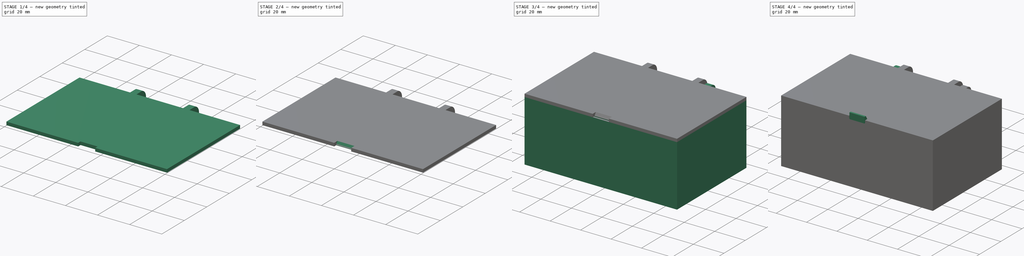
[diagram: build sequence overview — one tinted view per stage of 4, left to right]
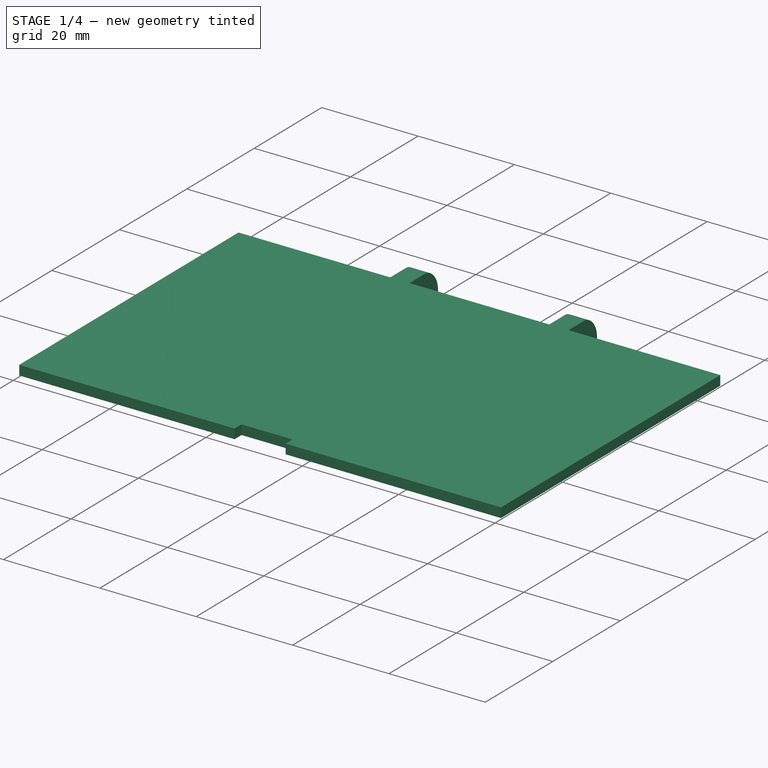
[diagram: stage 1 of 4 — iso view after this stage's code; geometry added in this stage tinted green]
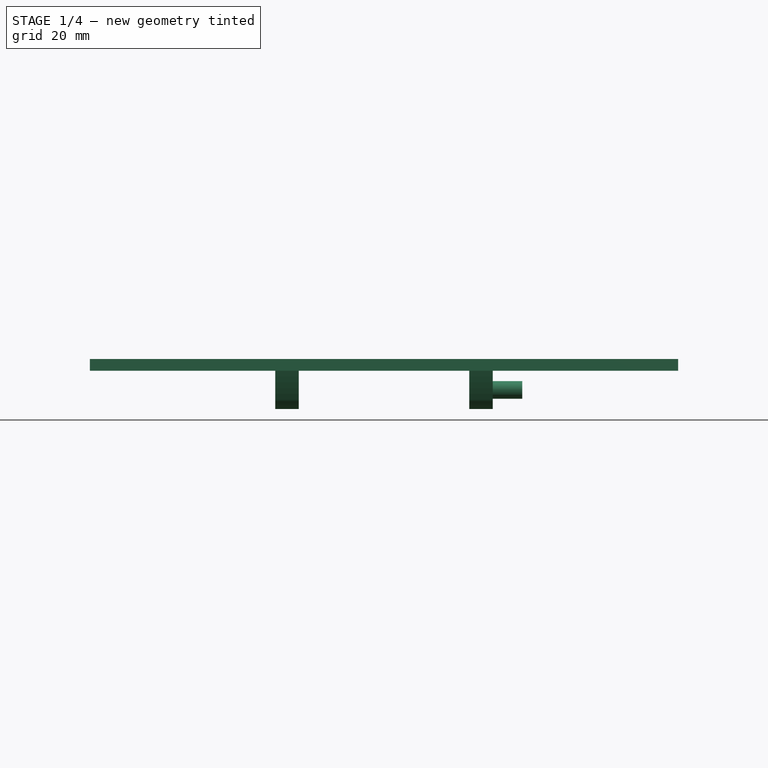
[diagram: stage 1 of 4 — front view after this stage's code; geometry added in this stage tinted green]
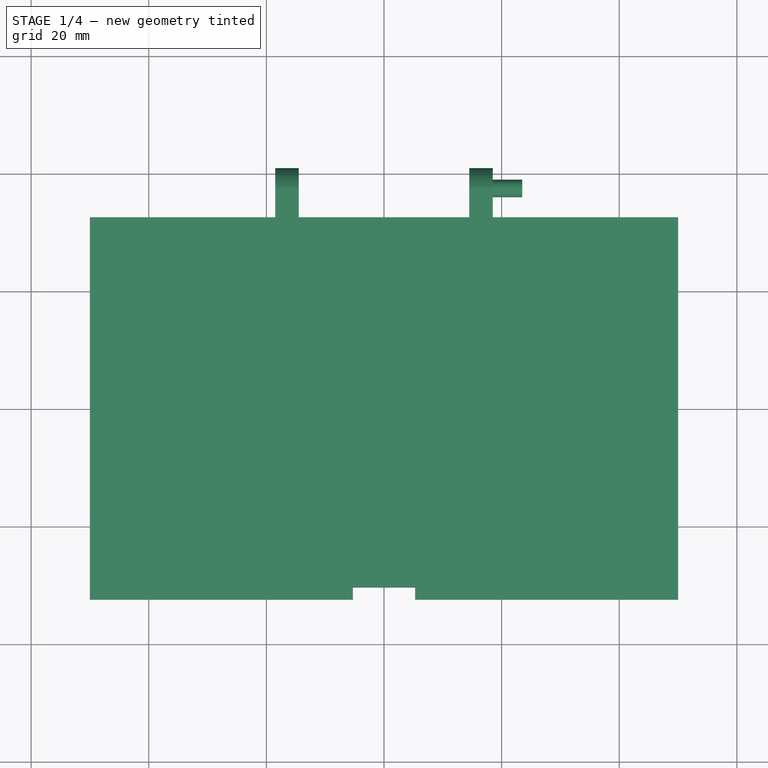
[diagram: stage 1 of 4 — top view after this stage's code; geometry added in this stage tinted green]
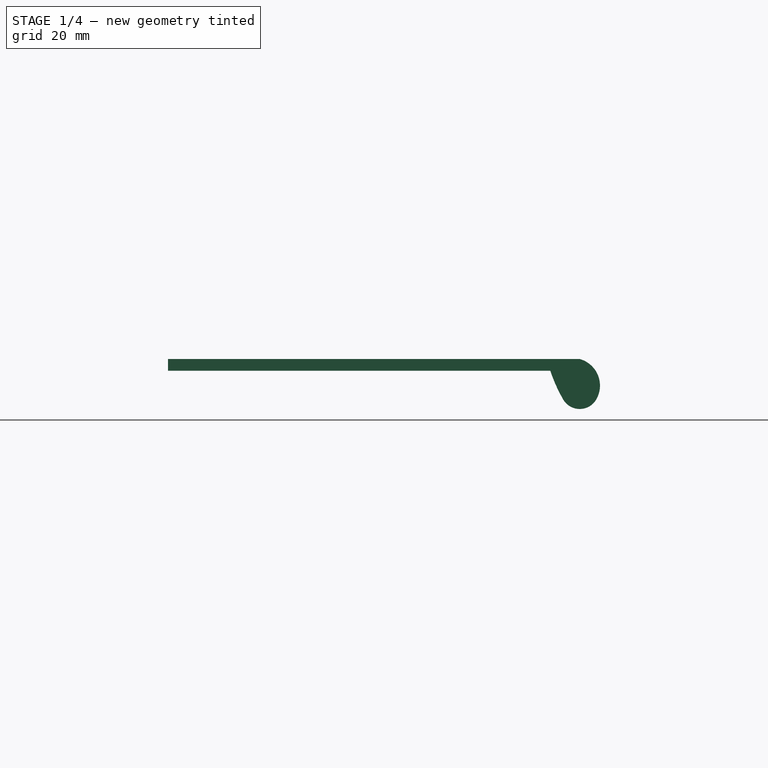
[diagram: stage 1 of 4 — right view after this stage's code; geometry added in this stage tinted green]
FCSTD DOCUMENT  (FreeCAD 0.19R22756 (Git))
Label: screw-box
License: All rights reserved
LicenseURL: http://en.wikipedia.org/wiki/All_rights_reserved
objects: Sketcher::SketchObject×10, PartDesign::Pad×7, PartDesign::Mirrored×4, PartDesign::Pocket×3, PartDesign::Plane×2, PartDesign::Body×2, PartDesign::ShapeBinder×2
note: 40 computed .brp shape members not serialized (recipe doc carries the construction recipe); baked Part::Feature solids carry a one-line shape summary decoded from their .brp

FEATURE [PartDesign::Body] Body  label="Screwbox-100x65"
  Group = -> [Sketch,Pad,Sketch001,Pocket,DatumPlane001,Sketch002,Pad001,Mirrored,Sketch003,Pocket001,Mirrored001,Sketch004,Pad002]
  Origin = -> Origin
  Tip = -> Pad002
FEATURE [PartDesign::ShapeBinder] CopyPad002
  TraceSupport = false
FEATURE [Sketcher::SketchObject] Sketch005
  ExternalGeometry = -> [CopyPad002]
  MapMode = 5
  Placement = pos=(0,0,40) rot=(0,0,1;0rad)
  Support = -> [CopyPad002]
  expr: Constraints[7] = Constraints[6]
  sketch-geometry (8):
    g0: LineSegment StartX=-5.3 StartY=-30.445 StartZ=0 EndX=5.3 EndY=-30.445 EndZ=0
    g1: LineSegment StartX=-5.3 StartY=-30.445 StartZ=0 EndX=-5.3 EndY=-32.5 EndZ=0
    g2: LineSegment StartX=5.3 StartY=-30.445 StartZ=0 EndX=5.3 EndY=-32.5 EndZ=0
    g3: LineSegment StartX=-5.3 StartY=-32.5 StartZ=0 EndX=-50 EndY=-32.5 EndZ=0
    g4: LineSegment StartX=-50 StartY=-32.5 StartZ=0 EndX=-50 EndY=32.5 EndZ=0
    g5: LineSegment StartX=-50 StartY=32.5 StartZ=0 EndX=50 EndY=32.5 EndZ=0
    g6: LineSegment StartX=50 StartY=32.5 StartZ=0 EndX=50 EndY=-32.5 EndZ=0
    g7: LineSegment StartX=50 StartY=-32.5 StartZ=0 EndX=5.3 EndY=-32.5 EndZ=0
  constraints (20):
    c: PointOnObject(g1,g-5)
    c: Horizontal(g0)
    c: Coincident(g1,g0)
    c: Vertical(g1)
    c: Coincident(g2,g0)
    c: Vertical(g2)
    c: Distance(g1,g-3) = 0.3
    c: Distance(g-6,g2) = 0.3
    c: Distance(g-5,g0) = 2.055
    c: PointOnObject(g2,g-6)
    c: Coincident(g3,g1)
    c: Coincident(g3,g-7)
    c: Coincident(g4,g3)
    c: Coincident(g4,g-9)
    c: Coincident(g5,g4)
    c: Coincident(g5,g-13)
    c: Coincident(g6,g5)
    c: Coincident(g6,g-13)
    c: Coincident(g7,g6)
    c: Coincident(g7,g2)
FEATURE [PartDesign::Pad] Pad003
  Direction = (1,1,1)
  Length = 2
  Length2 = 100
  Profile = -> Sketch005
  Type = 0
FEATURE [PartDesign::ShapeBinder] CopyPad002001
  TraceSupport = false
FEATURE [PartDesign::Plane] DatumPlane
  AttachmentOffset = pos=(0,0,1.5) rot=(0,0,1;0rad)
  Length = 87.4707
  MapMode = 5
  Placement = pos=(18.5,0,0) rot=(0.57735,-0.57735,-0.57735;2.0944rad)
  ResizeMode = 0
  Support = -> [CopyPad002001]
  Width = 81.0294
FEATURE [Sketcher::SketchObject] Sketch006
  ExternalGeometry = -> [CopyPad002001,Pad003]
  MapMode = 5
  Placement = pos=(18.5,0,0) rot=(0.57735,-0.57735,-0.57735;2.0944rad)
  Support = -> [DatumPlane]
  sketch-geometry (6):
    g0: LineSegment StartX=-32.5 StartY=40 StartZ=0 EndX=-32.5 EndY=42 EndZ=0
    g1: LineSegment StartX=-32.5 StartY=42 StartZ=0 EndX=-37.5 EndY=42 EndZ=0
    g2: ArcOfCircle CenterX=-36.247 CenterY=37.4734 CenterZ=0 NormalX=0 NormalY=0 NormalZ=1 AngleXU=0 Radius=4.69681 StartAngle=1.84084 EndAngle=3.66519
    g3: Circle [constr] CenterX=-37.5 CenterY=36.75 CenterZ=0 NormalX=0 NormalY=0 NormalZ=1 AngleXU=0 Radius=3.25
    g4: ArcOfCircle CenterX=-57.3676 CenterY=48.2206 CenterZ=0 NormalX=0 NormalY=0 NormalZ=1 AngleXU=0 Radius=26.1911 StartAngle=5.75959 EndAngle=5.96392
    g5: ArcOfCircle CenterX=-37.5 CenterY=36.75 CenterZ=0 NormalX=0 NormalY=0 NormalZ=1 AngleXU=0 Radius=3.25 StartAngle=3.66519 EndAngle=5.75959
  constraints (17):
    c: Coincident(g0,g-8)
    c: Coincident(g0,g-8)
    c: Horizontal(g1)
    c: Coincident(g2,g1)
    c: Coincident(g-5,g2)
    c: Coincident(g1,g0)
    c: Tangent(g2,g-4)
    c: Vertical(g1,g-4)
    c: Coincident(g3,g-6)
    c: Tangent(g3,g-4)
    c: Coincident(g4,g0)
    c: PointOnObject(g4,g3)
    c: Tangent(g4,g3)
    c: Horizontal(g2,g4)
    c: Coincident(g5,g2)
    c: Coincident(g5,g4)
    c: Tangent(g5,g3)
FEATURE [PartDesign::Pad] Pad004
  BaseFeature = -> Pad003
  Direction = (1,1,1)
  Length = 4
  Length2 = 100
  Profile = -> Sketch006
  Type = 0
FEATURE [PartDesign::Mirrored] Mirrored002
  BaseFeature = -> Pad004
  MirrorPlane = -> YZ_Plane001
  Originals = -> [Pad004]
FEATURE [Sketcher::SketchObject] Sketch007
  ExternalGeometry = -> [CopyPad002001]
  MapMode = 5
  Placement = pos=(18.5,0,0) rot=(0.57735,0.57735,0.57735;2.0944rad)
  Support = -> [Mirrored002]
  sketch-geometry (1):
    g0: Circle CenterX=37.5 CenterY=36.75 CenterZ=0 NormalX=0 NormalY=0 NormalZ=1 AngleXU=0 Radius=1.5
  constraints (2):
    c: Coincident(g0,g-3)
    c: Diameter(g0) = 3
FEATURE [PartDesign::Pad] Pad005
  BaseFeature = -> Mirrored002
  Direction = (1,1,1)
  Length = 5
  Length2 = 100
  Profile = -> Sketch007
  Type = 0
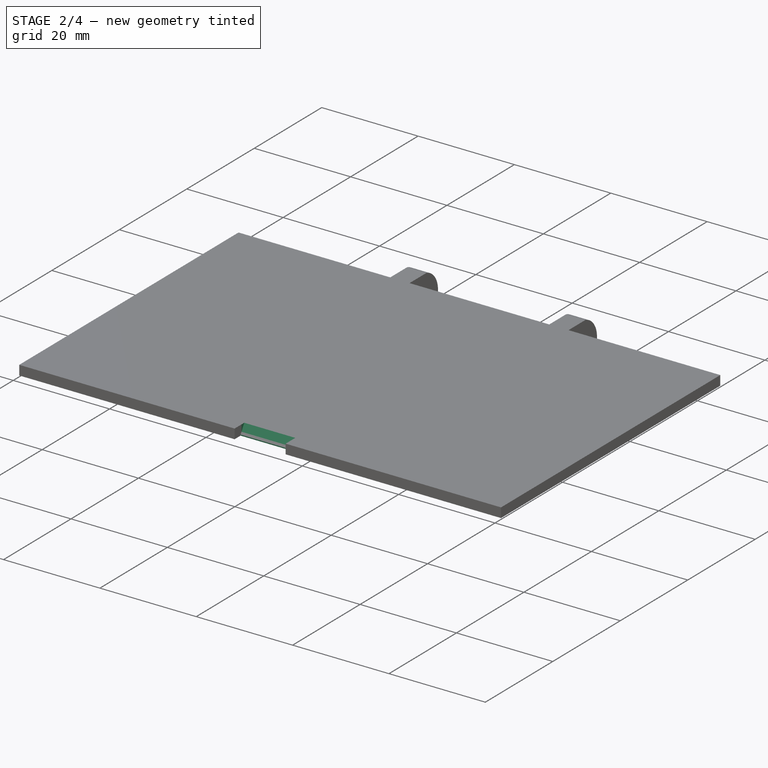
[diagram: stage 2 of 4 — iso view after this stage's code; geometry added in this stage tinted green]
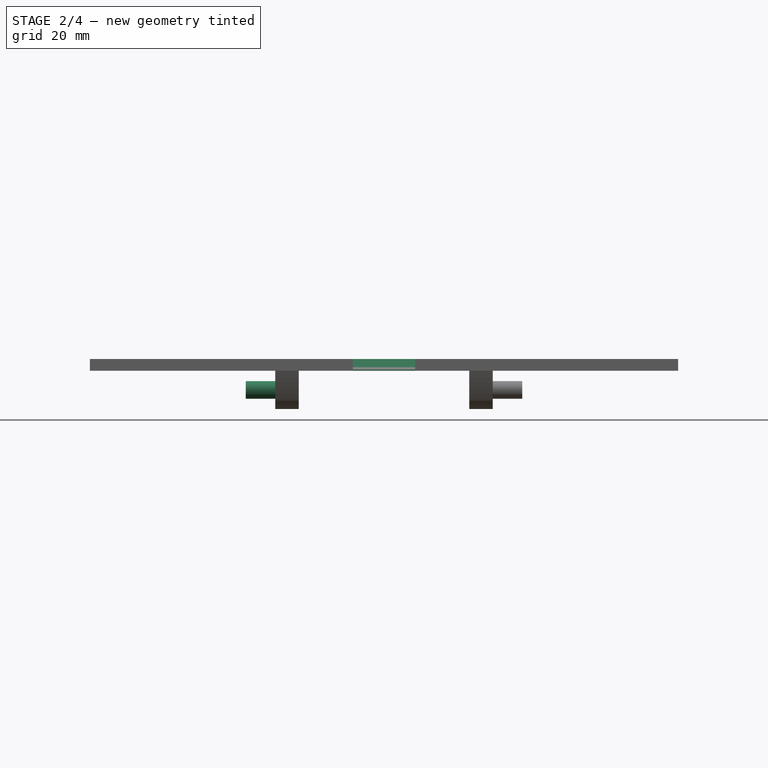
[diagram: stage 2 of 4 — front view after this stage's code; geometry added in this stage tinted green]
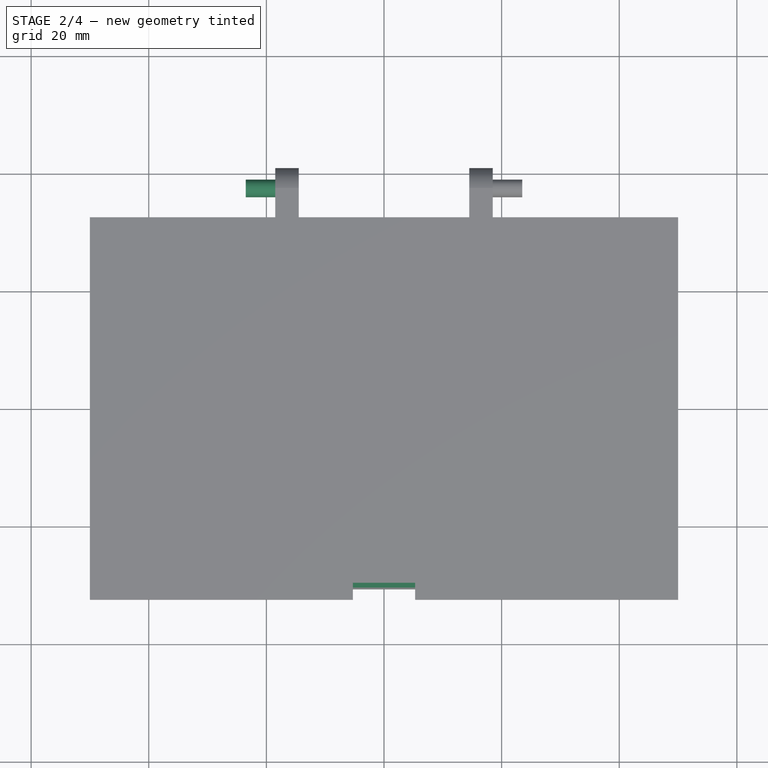
[diagram: stage 2 of 4 — top view after this stage's code; geometry added in this stage tinted green]
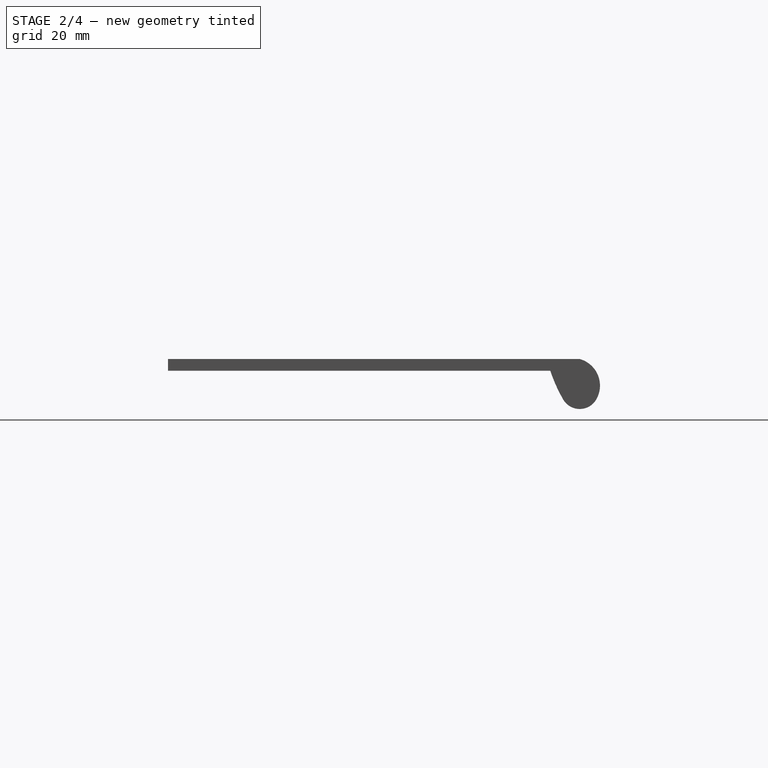
[diagram: stage 2 of 4 — right view after this stage's code; geometry added in this stage tinted green]
FEATURE [PartDesign::Mirrored] Mirrored003
  BaseFeature = -> Pad005
  MirrorPlane = -> YZ_Plane001
  Originals = -> [Pad005]
FEATURE [Sketcher::SketchObject] Sketch008
  ExternalGeometry = -> [Mirrored003]
  MapMode = 5
  Placement = pos=(-5.3,0,0) rot=(0.57735,0.57735,0.57735;2.0944rad)
  Support = -> [Mirrored003]
  sketch-geometry (3):
    g0: LineSegment StartX=-30.445 StartY=42 StartZ=0 EndX=-29.645 EndY=42 EndZ=0
    g1: LineSegment StartX=-29.645 StartY=42 StartZ=0 EndX=-30.445 EndY=40.6144 EndZ=0
    g2: LineSegment StartX=-30.445 StartY=42 StartZ=0 EndX=-30.445 EndY=40.6144 EndZ=0
  constraints (8):
    c: Coincident(g0,g-6)
    c: PointOnObject(g0,g-5)
    c: Coincident(g1,g0)
    c: PointOnObject(g1,g-6)
    c: Distance(g0) = 0.8
    c: Angle(g0,g1) = 1.0472
    c: Coincident(g2,g0)
    c: Coincident(g2,g1)
FEATURE [PartDesign::Pocket] Pocket002
  BaseFeature = -> Mirrored003
  Length = 10.6
  Length2 = 100
  Profile = -> Sketch008
  Reversed = true
  Type = 0
FEATURE [Sketcher::SketchObject] Sketch009
  ExternalGeometry = -> [Pocket002]
  MapMode = 5
  Placement = pos=(-5.3,0,0) rot=(0.57735,0.57735,0.57735;2.0944rad)
  Support = -> [Pocket002]
  sketch-geometry (4):
    g0: LineSegment StartX=-30.445 StartY=40.6144 StartZ=0 EndX=-30.7351 EndY=40.2 EndZ=0
    g1: LineSegment StartX=-30.7351 StartY=40.2 StartZ=0 EndX=-30.7351 EndY=40 EndZ=0
    g2: LineSegment StartX=-30.7351 StartY=40 StartZ=0 EndX=-30.445 EndY=40 EndZ=0
    g3: LineSegment StartX=-30.445 StartY=40 StartZ=0 EndX=-30.445 EndY=40.6144 EndZ=0
  constraints (10):
    c: Coincident(g0,g-5)
    c: Coincident(g1,g0)
    c: PointOnObject(g1,g-4)
    c: Coincident(g2,g1)
    c: Coincident(g2,g-3)
    c: Vertical(g1,g0)
    c: Coincident(g3,g0)
    c: Coincident(g3,g2)
    c: Angle(g0,g3) = 0.610865
    c: Distance(g0,g2) = 0.2
FEATURE [PartDesign::Pad] Pad006
  BaseFeature = -> Pocket002
  Direction = (1,1,1)
  Length = 10.6
  Length2 = 100
  Profile = -> Sketch009
  Type = 0
FEATURE [PartDesign::Body] Body001  label="Lid-100x65"
  Group = -> [CopyPad002,Sketch005,Pad003,DatumPlane,CopyPad002001,Sketch006,Pad004,Mirrored002,Sketch007,Pad005,Mirrored003,Sketch008,Pocket002,Sketch009,Pad006]
  Origin = -> Origin001
  Tip = -> Pad006
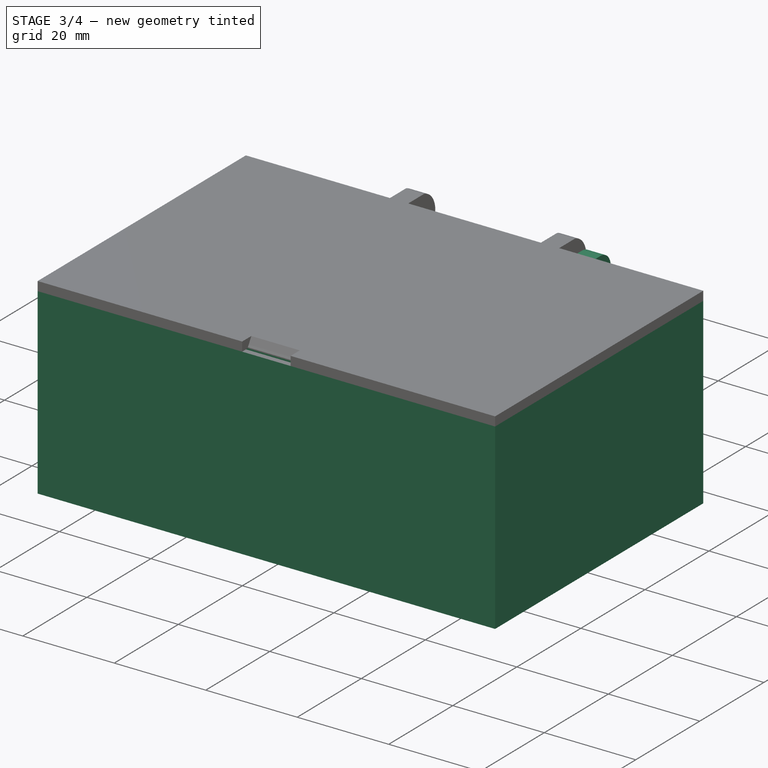
[diagram: stage 3 of 4 — iso view after this stage's code; geometry added in this stage tinted green]
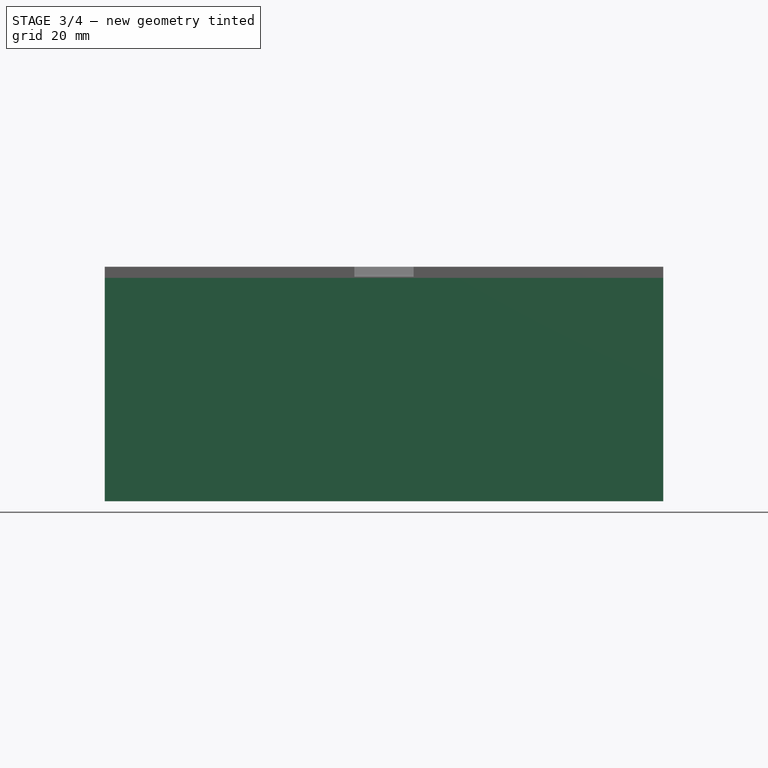
[diagram: stage 3 of 4 — front view after this stage's code; geometry added in this stage tinted green]
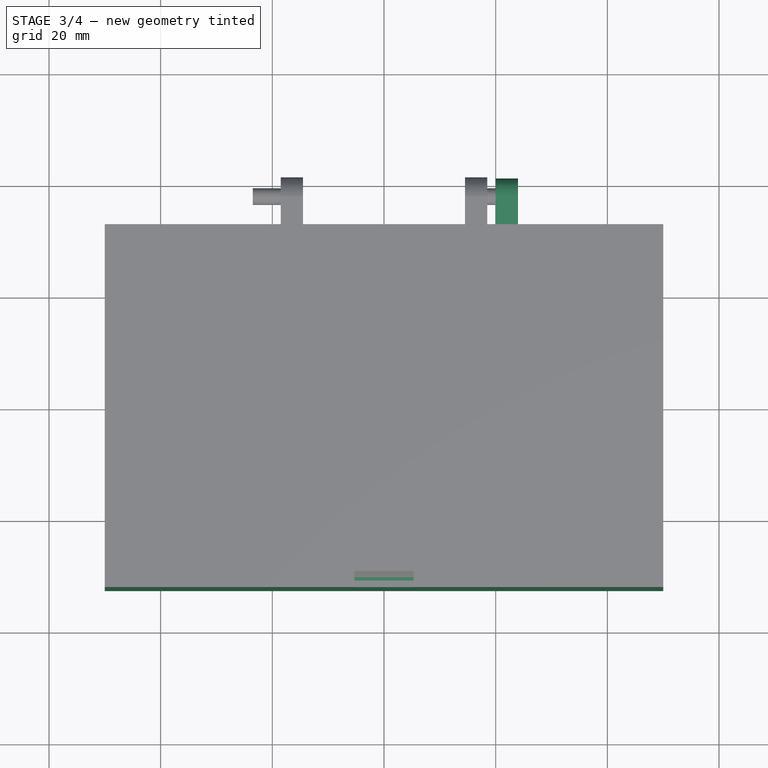
[diagram: stage 3 of 4 — top view after this stage's code; geometry added in this stage tinted green]
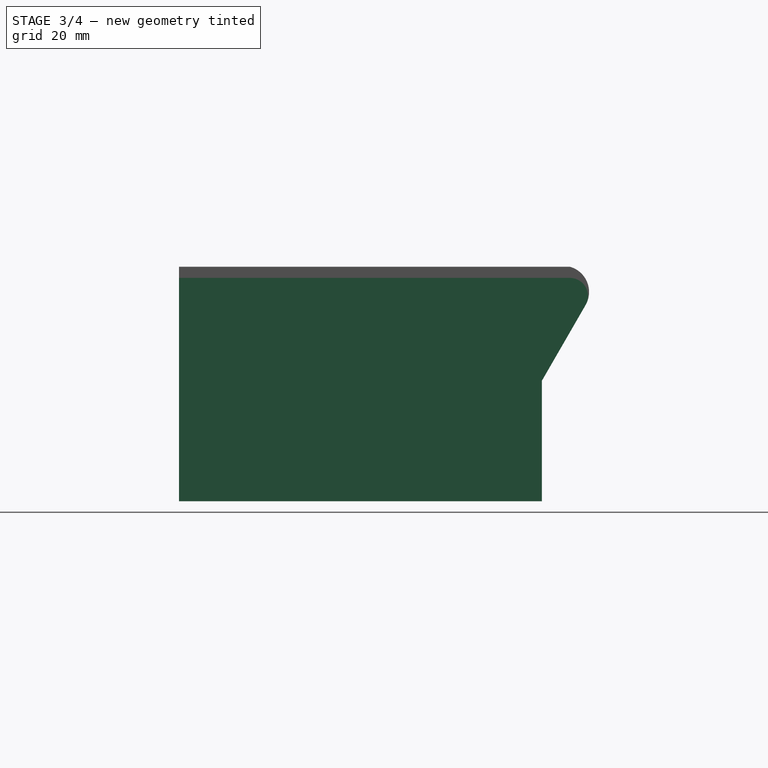
[diagram: stage 3 of 4 — right view after this stage's code; geometry added in this stage tinted green]
FEATURE [Sketcher::SketchObject] Sketch
  MapMode = 5
  Support = -> [XY_Plane]
  expr: Constraints[11] = -Constraints[8] / 2
  expr: Constraints[10] = Constraints[9] / 2
  sketch-geometry (4):
    g0: LineSegment StartX=-50 StartY=-32.5 StartZ=0 EndX=50 EndY=-32.5 EndZ=0
    g1: LineSegment StartX=50 StartY=-32.5 StartZ=0 EndX=50 EndY=32.5 EndZ=0
    g2: LineSegment StartX=50 StartY=32.5 StartZ=0 EndX=-50 EndY=32.5 EndZ=0
    g3: LineSegment StartX=-50 StartY=32.5 StartZ=0 EndX=-50 EndY=-32.5 EndZ=0
  constraints (12):
    c: Coincident(g0,g1)
    c: Coincident(g1,g2)
    c: Coincident(g2,g3)
    c: Coincident(g3,g0)
    c: Horizontal(g0)
    c: Horizontal(g2)
    c: Vertical(g1)
    c: Vertical(g3)
    c: Distance(g2) = 100
    c: Distance(g1) = 65
    c: Distance(g-1,g0) = 32.5
    c: DistanceX(g-2,g2) = -50
FEATURE [PartDesign::Pad] Pad
  Direction = (1,1,1)
  Length = 40
  Length2 = 100
  Profile = -> Sketch
  Type = 0
FEATURE [Sketcher::SketchObject] Sketch001
  ExternalGeometry = -> [Pad]
  MapMode = 5
  Placement = pos=(0,0,40) rot=(0,0,1;0rad)
  Support = -> [Pad]
  expr: Constraints[11] = Constraints[8]
  expr: Constraints[10] = Constraints[8]
  expr: Constraints[9] = Constraints[8]
  sketch-geometry (4):
    g0: LineSegment StartX=-48.8 StartY=-31.3 StartZ=0 EndX=48.8 EndY=-31.3 EndZ=0
    g1: LineSegment StartX=48.8 StartY=-31.3 StartZ=0 EndX=48.8 EndY=31.3 EndZ=0
    g2: LineSegment StartX=48.8 StartY=31.3 StartZ=0 EndX=-48.8 EndY=31.3 EndZ=0
    g3: LineSegment StartX=-48.8 StartY=31.3 StartZ=0 EndX=-48.8 EndY=-31.3 EndZ=0
  constraints (12):
    c: Coincident(g0,g1)
    c: Coincident(g1,g2)
    c: Coincident(g2,g3)
    c: Coincident(g3,g0)
    c: Horizontal(g0)
    c: Horizontal(g2)
    c: Vertical(g1)
    c: Vertical(g3)
    c: Distance(g2,g-4) = 1.2
    c: Distance(g2,g-3) = 1.2
    c: Distance(g1,g-6) = 1.2
    c: Distance(g0,g-5) = 1.2
FEATURE [PartDesign::Pocket] Pocket
  BaseFeature = -> Pad
  Length = 38
  Length2 = 100
  Profile = -> Sketch001
  Type = 0
FEATURE [PartDesign::Plane] DatumPlane001
  AttachmentOffset = pos=(0,0,20) rot=(0,0,1;0rad)
  Length = 87.4677
  MapMode = 5
  Placement = pos=(20,-4.4e-15,4.4e-15) rot=(0.57735,0.57735,0.57735;2.0944rad)
  ResizeMode = 0
  Support = -> [YZ_Plane]
  Width = 83.2186
FEATURE [Sketcher::SketchObject] Sketch002
  ExternalGeometry = -> [Pocket]
  MapMode = 5
  Placement = pos=(20,-4.4e-15,4.4e-15) rot=(0.57735,0.57735,0.57735;2.0944rad)
  Support = -> [DatumPlane001]
  sketch-geometry (4):
    g0: LineSegment StartX=32.5 StartY=40 StartZ=0 EndX=32.5 EndY=21.5897 EndZ=0
    g1: LineSegment StartX=32.5 StartY=40 StartZ=0 EndX=37.5 EndY=40 EndZ=0
    g2: LineSegment StartX=32.5 StartY=21.5897 StartZ=0 EndX=40.3146 EndY=35.125 EndZ=0
    g3: ArcOfCircle CenterX=37.5 CenterY=36.75 CenterZ=0 NormalX=0 NormalY=0 NormalZ=1 AngleXU=0 Radius=3.25 StartAngle=5.75959 EndAngle=7.85398
  constraints (10):
    c: Coincident(g0,g-4)
    c: PointOnObject(g0,g-4)
    c: Coincident(g1,g0)
    c: Horizontal(g1)
    c: Coincident(g2,g0)
    c: Tangent(g3,g1) = 1.5708
    c: Tangent(g3,g2) = -1.5708
    c: Distance(g1) = 5
    c: Angle(g-4,g2) = 2.61799
    c: Diameter(g3) = 6.5
FEATURE [PartDesign::Pad] Pad001
  BaseFeature = -> Pocket
  Direction = (1,1,1)
  Length = 4
  Length2 = 100
  Profile = -> Sketch002
  Type = 0
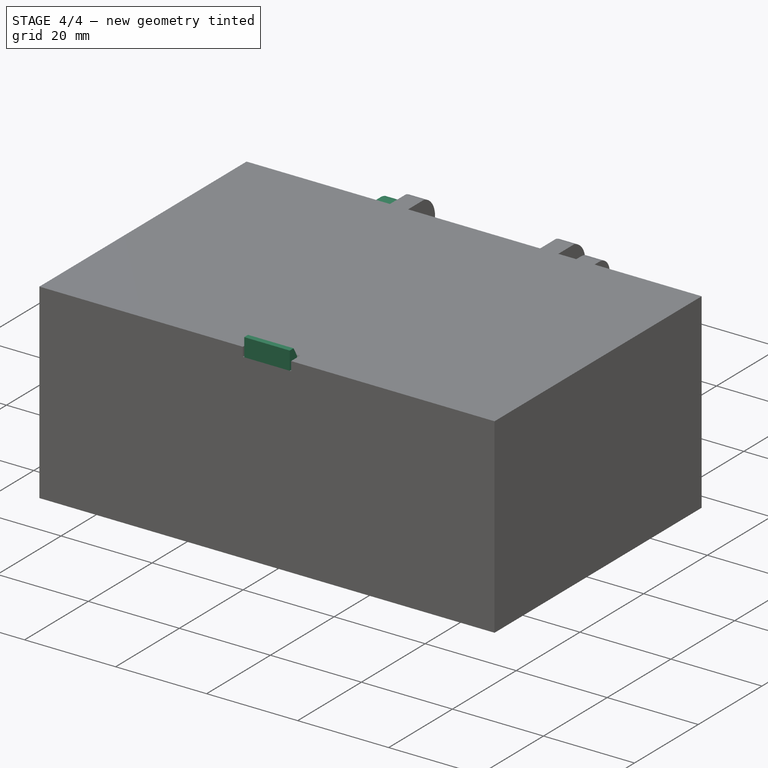
[diagram: stage 4 of 4 — iso view after this stage's code; geometry added in this stage tinted green]
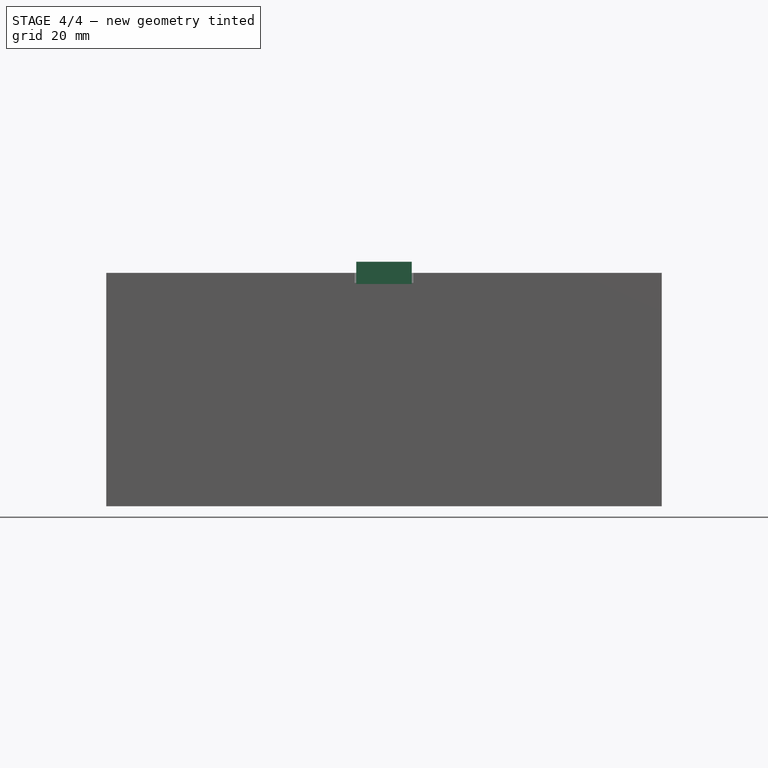
[diagram: stage 4 of 4 — front view after this stage's code; geometry added in this stage tinted green]
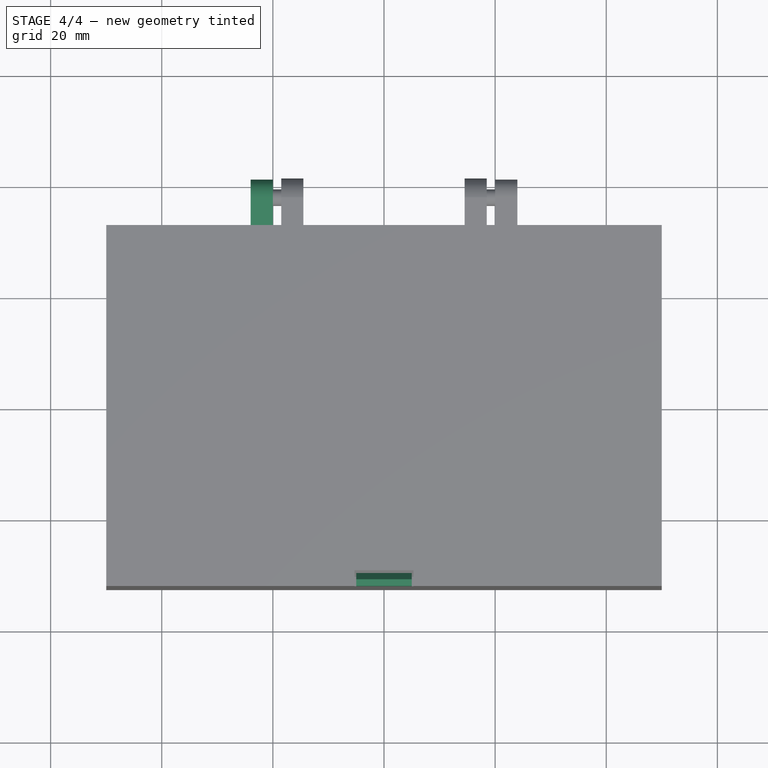
[diagram: stage 4 of 4 — top view after this stage's code; geometry added in this stage tinted green]
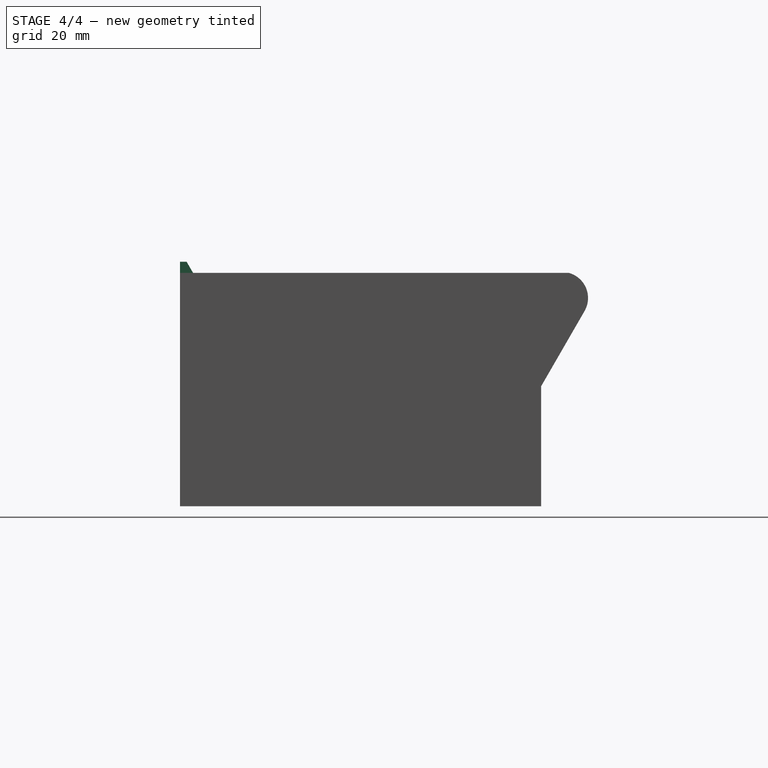
[diagram: stage 4 of 4 — right view after this stage's code; geometry added in this stage tinted green]
FEATURE [PartDesign::Mirrored] Mirrored
  BaseFeature = -> Pad001
  MirrorPlane = -> YZ_Plane
  Originals = -> [Pad001]
FEATURE [Sketcher::SketchObject] Sketch003
  ExternalGeometry = -> [Mirrored]
  MapMode = 5
  Placement = pos=(24,0,0) rot=(0.57735,0.57735,0.57735;2.0944rad)
  Support = -> [Mirrored]
  sketch-geometry (1):
    g0: Circle CenterX=37.5 CenterY=36.75 CenterZ=0 NormalX=0 NormalY=0 NormalZ=1 AngleXU=0 Radius=2
  constraints (2):
    c: Coincident(g0,g-3)
    c: Diameter(g0) = 4
FEATURE [PartDesign::Pocket] Pocket001
  BaseFeature = -> Mirrored
  Length = 0
  Length2 = 100
  Profile = -> Sketch003
  Type = 3
  UpToFace = -> Mirrored [Face16]
FEATURE [PartDesign::Mirrored] Mirrored001
  BaseFeature = -> Pocket001
  MirrorPlane = -> YZ_Plane
  Originals = -> [Pocket001]
FEATURE [Sketcher::SketchObject] Sketch004
  ExternalGeometry = -> [Mirrored001]
  MapMode = 5
  Placement = pos=(0,0,0) rot=(0.57735,0.57735,0.57735;2.0944rad)
  Support = -> [YZ_Plane]
  sketch-geometry (5):
    g0: LineSegment StartX=-32.5 StartY=40 StartZ=0 EndX=-32.5 EndY=44 EndZ=0
    g1: LineSegment StartX=-32.5 StartY=44 StartZ=0 EndX=-31.3 EndY=44 EndZ=0
    g2: LineSegment StartX=-31.3 StartY=40 StartZ=0 EndX=-32.5 EndY=40 EndZ=0
    g3: LineSegment StartX=-31.3 StartY=44 StartZ=0 EndX=-30.1453 EndY=42 EndZ=0
    g4: LineSegment StartX=-30.1453 StartY=42 StartZ=0 EndX=-31.3 EndY=40 EndZ=0
  constraints (14):
    c: Coincident(g0,g-4)
    c: Vertical(g0)
    c: Coincident(g1,g0)
    c: Horizontal(g1)
    c: PointOnObject(g2,g-4)
    c: Coincident(g2,g0)
    c: Coincident(g3,g1)
    c: Coincident(g4,g3)
    c: Distance(g0) = 4
    c: Distance(g1) = 1.2
    c: Equal(g2,g1)
    c: Coincident(g4,g2)
    c: Equal(g3,g4)
    c: Angle(g1,g3) = 2.0944
FEATURE [PartDesign::Pad] Pad002
  BaseFeature = -> Mirrored001
  Direction = (1,1,1)
  Length = 10
  Length2 = 100
  Midplane = true
  Profile = -> Sketch004
  Type = 0
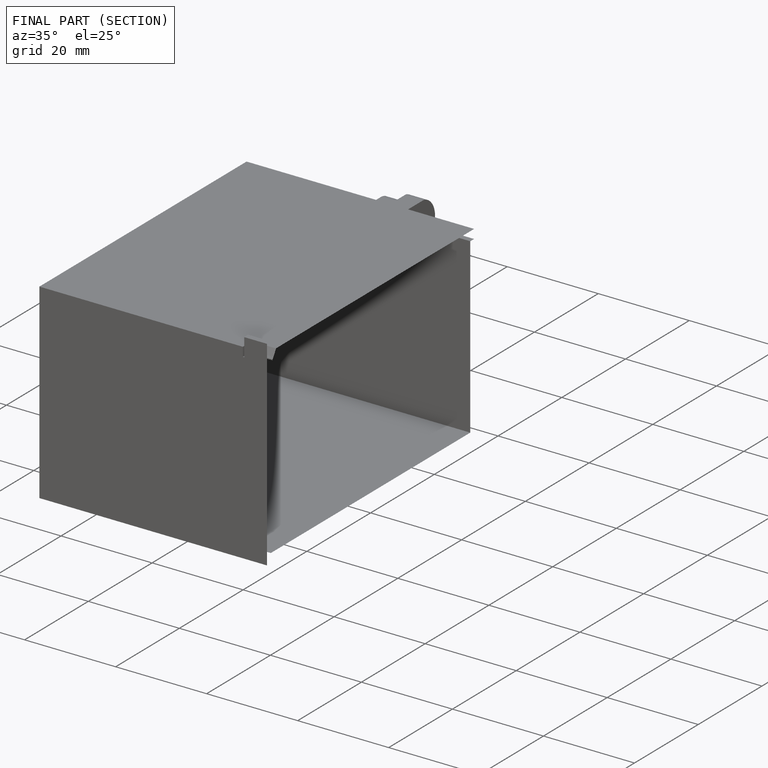
[diagram: finished part — half-section view (interior)]
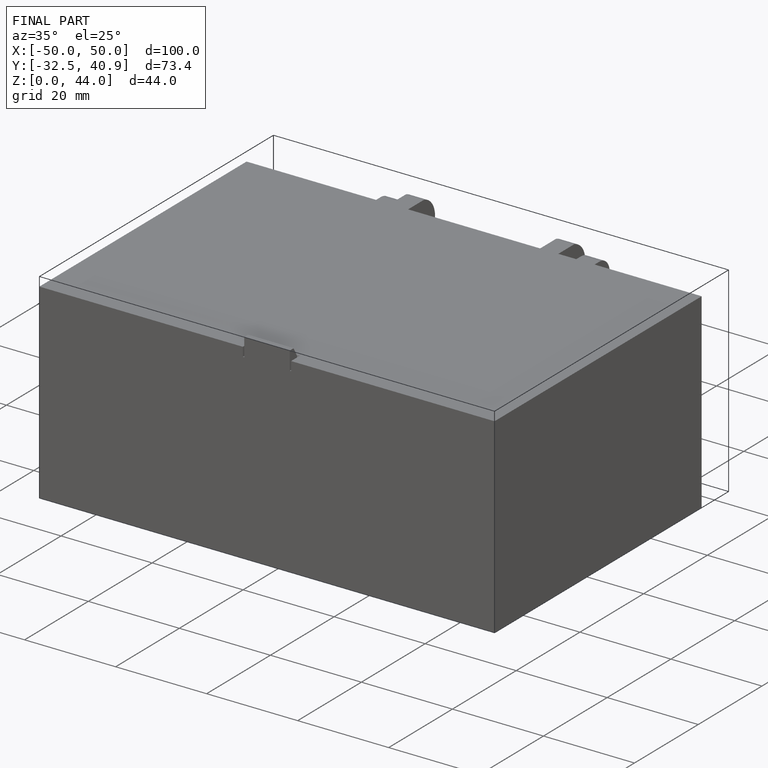
[diagram: finished part — iso view with bounding-box wireframe]
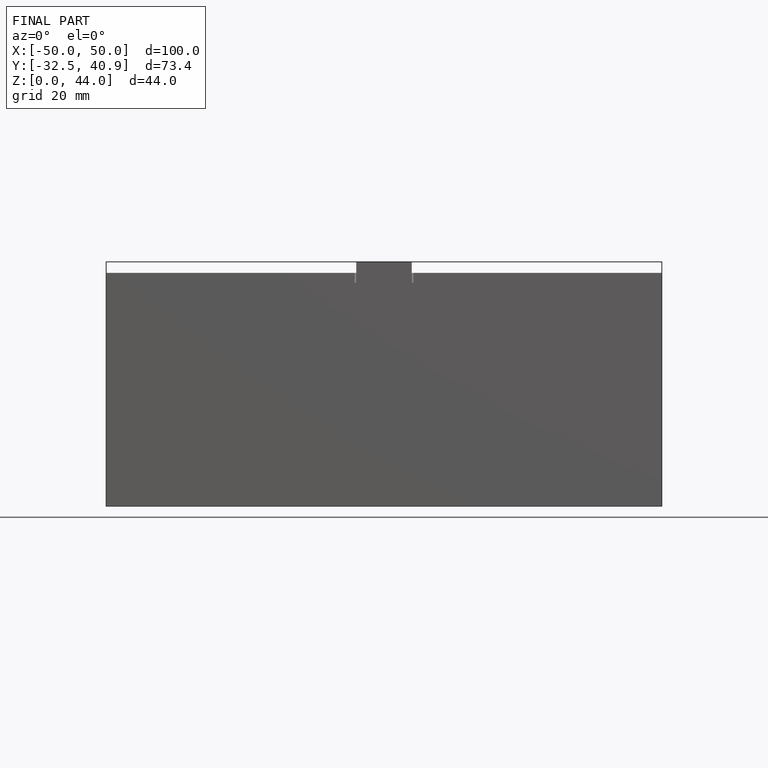
[diagram: finished part — front view with bounding-box wireframe]
